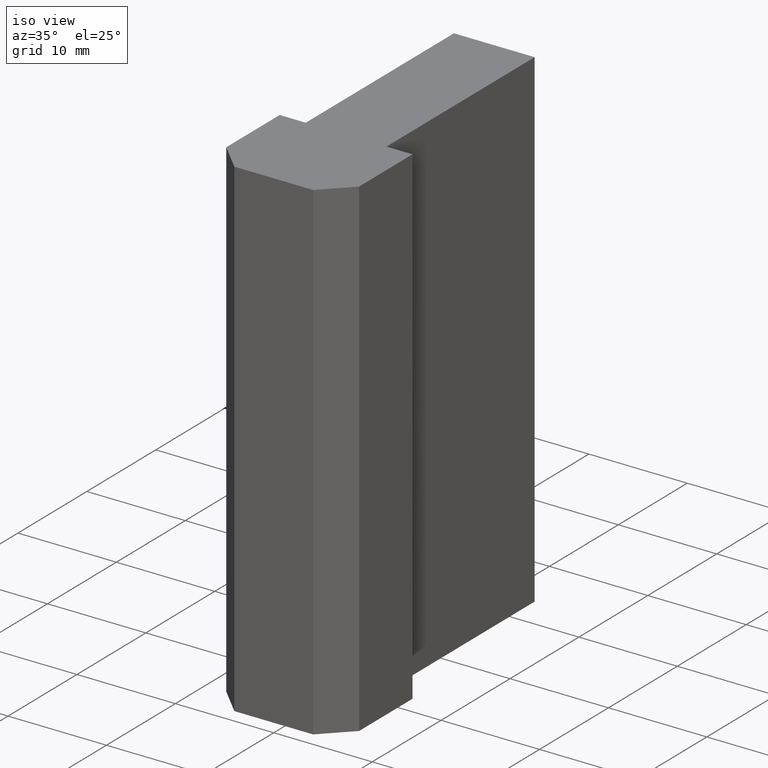
[diagram: clean part render]
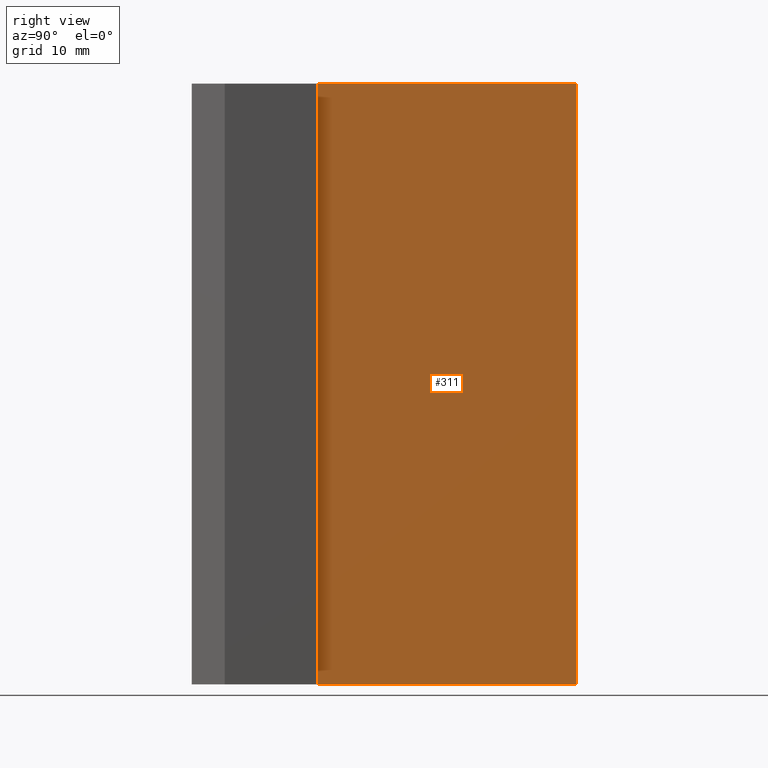
[diagram: tour spotlight — one face highlighted and labeled with its STEP entity id]
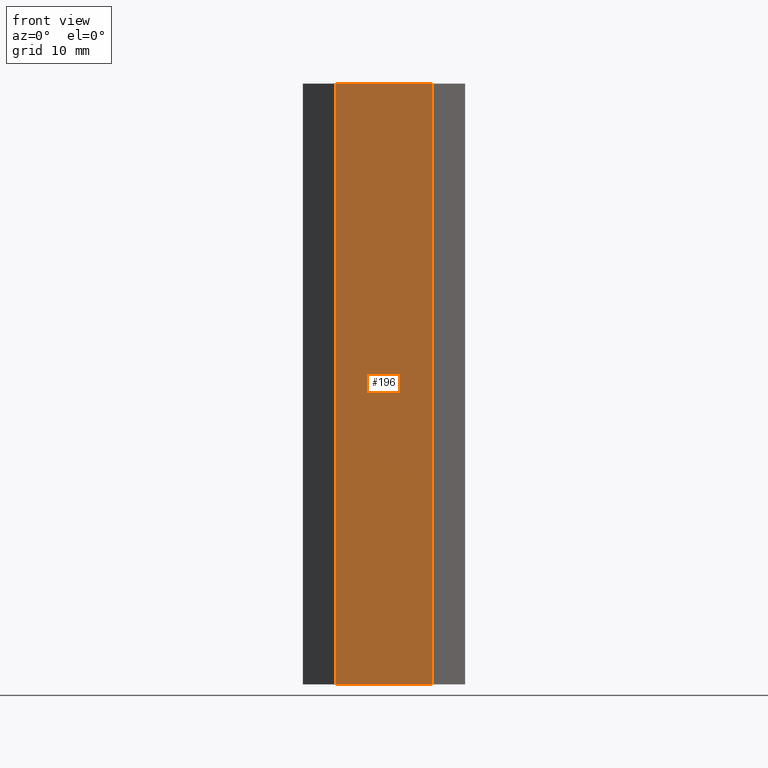
[diagram: tour spotlight — one face highlighted and labeled with its STEP entity id]
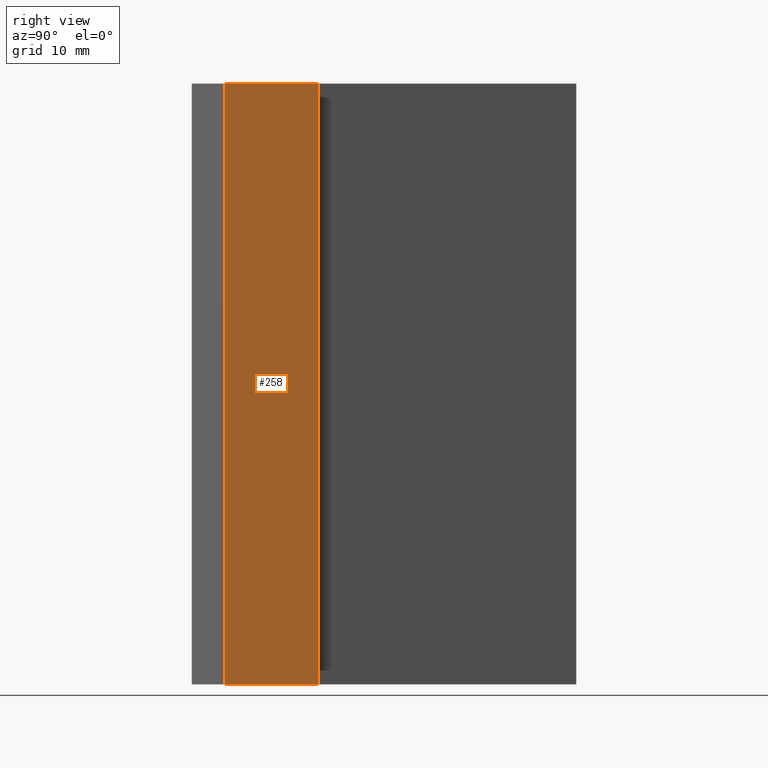
[diagram: tour spotlight — one face highlighted and labeled with its STEP entity id]
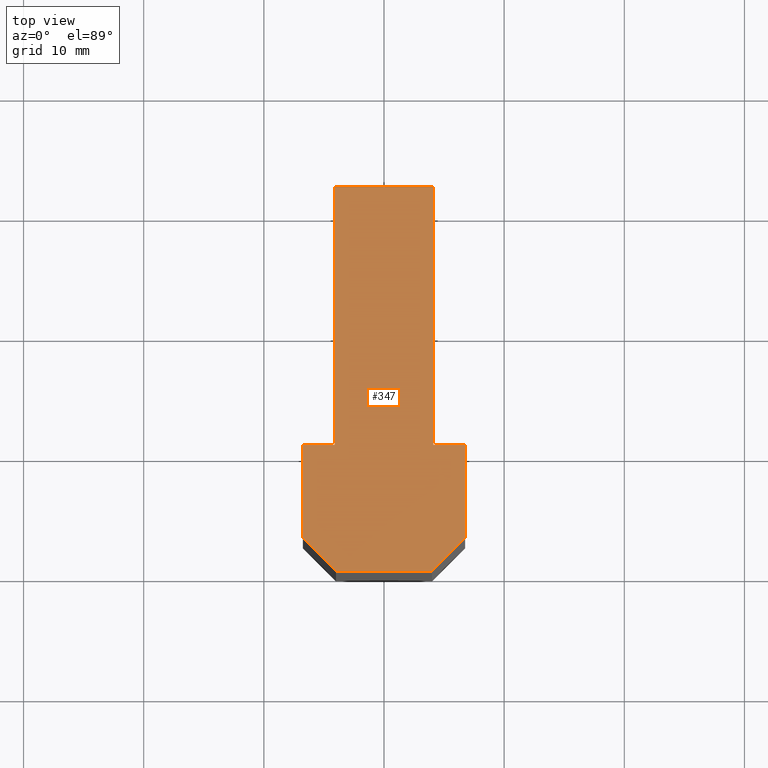
[diagram: tour spotlight — one face highlighted and labeled with its STEP entity id]
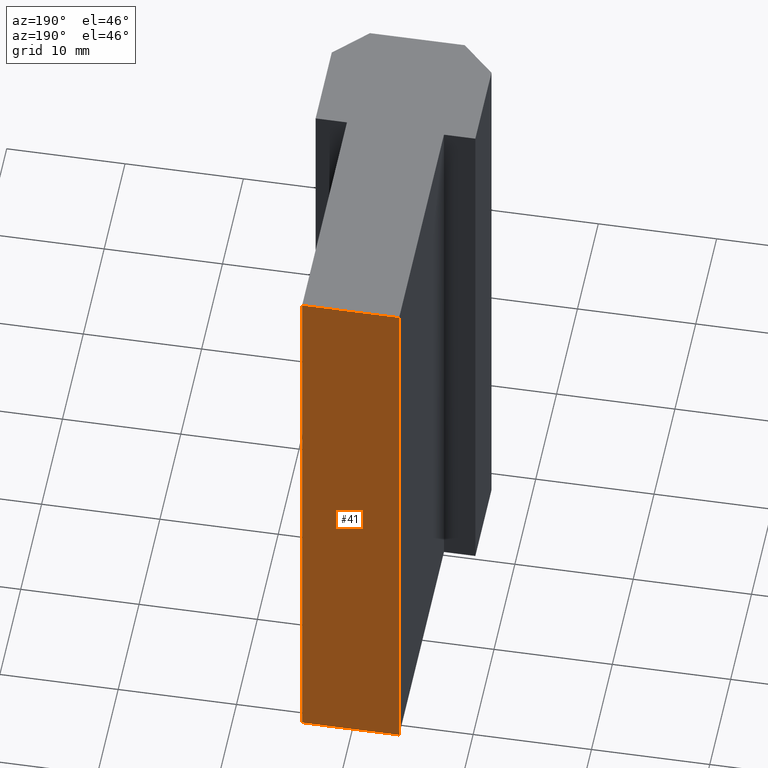
[diagram: tour spotlight — one face highlighted and labeled with its STEP entity id]
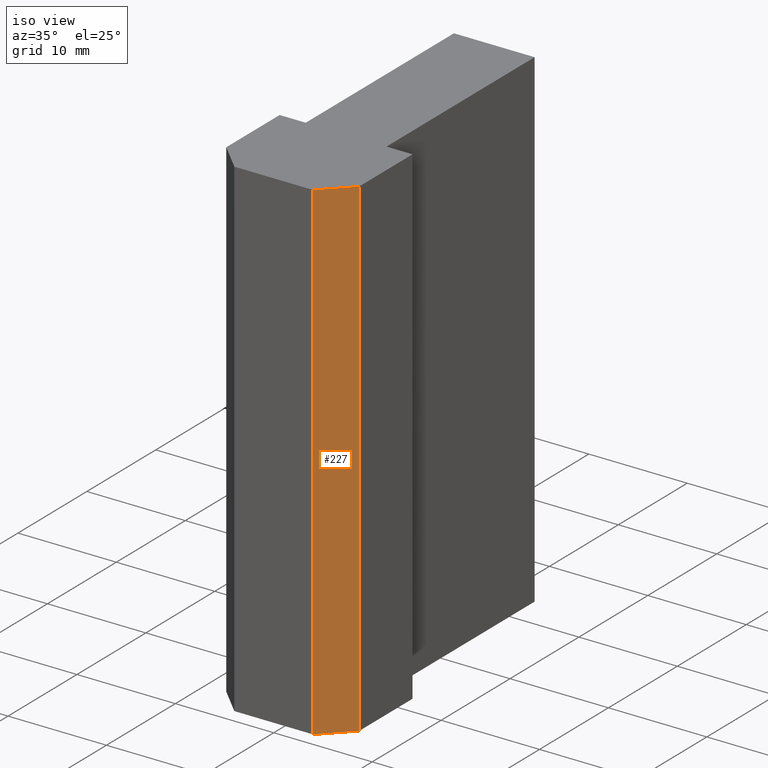
[diagram: tour spotlight — one face highlighted and labeled with its STEP entity id]
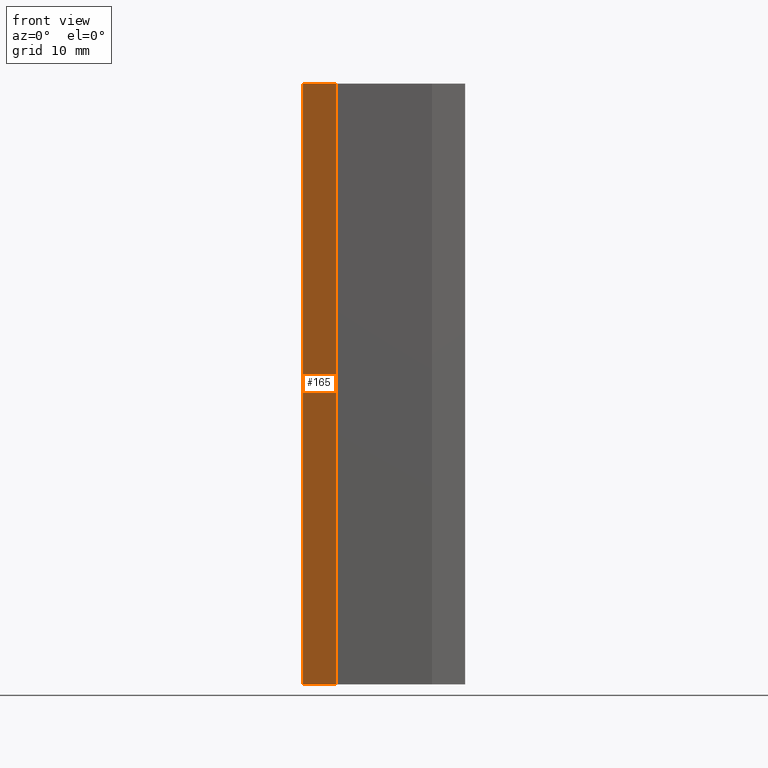
[diagram: tour spotlight — one face highlighted and labeled with its STEP entity id]
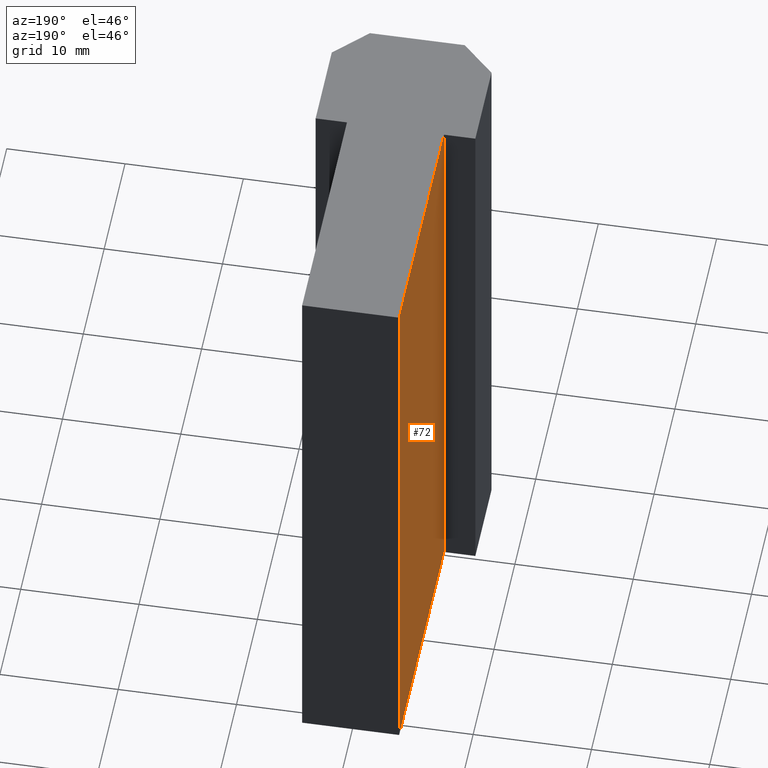
[diagram: tour spotlight — one face highlighted and labeled with its STEP entity id]
A machine part: a face-by-face anatomy tour. The part has 12 B-rep faces; the first image is the clean iso view, then the 8 largest visible faces are spotlighted one at a time (largest first), each with its STEP entity span.

Face 1 — right view, entity #311. In plain terms, the highlighted planar face has unit normal (1, 0, 0).
Definition (entity closure, byte-faithful):
#7=CARTESIAN_POINT('',(4.099999999983766,31.999999999872216,0.0));
#8=VERTEX_POINT('',#7);
#25=CARTESIAN_POINT('',(4.099999999983766,31.999999999872216,50.0));
#26=VERTEX_POINT('',#25);
#33=CARTESIAN_POINT('',(4.099999999983766,31.999999999872216,0.0));
#34=DIRECTION('',(0.0,0.0,1.0));
#35=VECTOR('',#34,50.0);
#36=LINE('',#33,#35);
#37=EDGE_CURVE('',#8,#26,#36,.T.);
#264=CARTESIAN_POINT('',(4.099999999983538,10.499999999958163,0.0));
#265=VERTEX_POINT('',#264);
#272=CARTESIAN_POINT('',(4.099999999983538,10.499999999958163,50.0));
#273=VERTEX_POINT('',#272);
#274=CARTESIAN_POINT('',(4.099999999983538,10.499999999958163,0.0));
#275=DIRECTION('',(0.0,0.0,1.0));
#276=VECTOR('',#275,50.0);
#277=LINE('',#274,#276);
#278=EDGE_CURVE('',#265,#273,#277,.T.);
#290=CARTESIAN_POINT('',(4.099999999983538,10.499999999958163,0.0));
#291=DIRECTION('',(1.0,0.0,0.0));
#292=DIRECTION('',(0.0,1.0,0.0));
#293=AXIS2_PLACEMENT_3D('',#290,#291,#292);
#294=PLANE('',#293);
#295=CARTESIAN_POINT('',(4.099999999983538,10.499999999958199,0.0));
#296=DIRECTION('',(0.0,1.0,0.0));
#297=VECTOR('',#296,21.499999999914017);
#298=LINE('',#295,#297);
#299=EDGE_CURVE('',#265,#8,#298,.T.);
#300=ORIENTED_EDGE('',*,*,#299,.T.);
#301=ORIENTED_EDGE('',*,*,#37,.T.);
#302=CARTESIAN_POINT('',(4.099999999983538,10.499999999958199,50.0));
#303=DIRECTION('',(0.0,1.0,0.0));
#304=VECTOR('',#303,21.499999999914017);
#305=LINE('',#302,#304);
#306=EDGE_CURVE('',#273,#26,#305,.T.);
#307=ORIENTED_EDGE('',*,*,#306,.F.);
#308=ORIENTED_EDGE('',*,*,#278,.F.);
#309=EDGE_LOOP('',(#300,#301,#307,#308));
#310=FACE_OUTER_BOUND('',#309,.T.);
#311=ADVANCED_FACE('',(#310),#294,.T.);

Face 2 — front view, entity #196. In plain terms, the highlighted planar face has unit normal (0, -1, 0).
Definition (entity closure, byte-faithful):
#140=CARTESIAN_POINT('',(-3.999999999983857,0.0,0.0));
#141=VERTEX_POINT('',#140);
#148=CARTESIAN_POINT('',(-3.999999999983857,0.0,50.0));
#149=VERTEX_POINT('',#148);
#150=CARTESIAN_POINT('',(-3.999999999983857,0.0,0.0));
#151=DIRECTION('',(0.0,0.0,1.0));
#152=VECTOR('',#151,50.0);
#153=LINE('',#150,#152);
#154=EDGE_CURVE('',#141,#149,#153,.T.);
#166=CARTESIAN_POINT('',(-3.999999999983857,0.0,0.0));
#167=DIRECTION('',(0.0,-1.0,0.0));
#168=DIRECTION('',(1.0,0.0,0.0));
#169=AXIS2_PLACEMENT_3D('',#166,#167,#168);
#170=PLANE('',#169);
#171=CARTESIAN_POINT('',(3.999999999983857,0.0,0.0));
#172=VERTEX_POINT('',#171);
#173=CARTESIAN_POINT('',(-3.999999999983911,0.0,0.0));
#174=DIRECTION('',(1.0,0.0,0.0));
#175=VECTOR('',#174,7.999999999967995);
#176=LINE('',#173,#175);
#177=EDGE_CURVE('',#141,#172,#176,.T.);
#178=ORIENTED_EDGE('',*,*,#177,.T.);
#179=CARTESIAN_POINT('',(3.999999999983857,0.0,50.0));
#180=VERTEX_POINT('',#179);
#181=CARTESIAN_POINT('',(3.999999999983857,0.0,0.0));
#182=DIRECTION('',(0.0,0.0,1.0));
#183=VECTOR('',#182,50.0);
#184=LINE('',#181,#183);
#185=EDGE_CURVE('',#172,#180,#184,.T.);
#186=ORIENTED_EDGE('',*,*,#185,.T.);
#187=CARTESIAN_POINT('',(-3.999999999983911,0.0,50.0));
#188=DIRECTION('',(1.0,0.0,0.0));
#189=VECTOR('',#188,7.999999999967995);
#190=LINE('',#187,#189);
#191=EDGE_CURVE('',#149,#180,#190,.T.);
#192=ORIENTED_EDGE('',*,*,#191,.F.);
#193=ORIENTED_EDGE('',*,*,#154,.F.);
#194=EDGE_LOOP('',(#178,#186,#192,#193));
#195=FACE_OUTER_BOUND('',#194,.T.);
#196=ADVANCED_FACE('',(#195),#170,.T.);

Face 3 — right view, entity #258. In plain terms, the highlighted planar face has unit normal (1, 0, 0).
Definition (entity closure, byte-faithful):
#202=CARTESIAN_POINT('',(6.749999999972943,2.749999999989086,0.0));
#203=VERTEX_POINT('',#202);
#210=CARTESIAN_POINT('',(6.749999999972943,2.749999999989086,50.0));
#211=VERTEX_POINT('',#210);
#212=CARTESIAN_POINT('',(6.749999999972943,2.749999999989086,0.0));
#213=DIRECTION('',(0.0,0.0,1.0));
#214=VECTOR('',#213,50.0);
#215=LINE('',#212,#214);
#216=EDGE_CURVE('',#203,#211,#215,.T.);
#228=CARTESIAN_POINT('',(6.749999999972943,2.749999999989086,0.0));
#229=DIRECTION('',(1.0,0.0,0.0));
#230=DIRECTION('',(0.0,1.0,0.0));
#231=AXIS2_PLACEMENT_3D('',#228,#229,#230);
#232=PLANE('',#231);
#233=CARTESIAN_POINT('',(6.749999999972943,10.499999999958163,0.0));
#234=VERTEX_POINT('',#233);
#235=CARTESIAN_POINT('',(6.749999999972943,2.749999999989147,0.0));
#236=DIRECTION('',(0.0,1.0,0.0));
#237=VECTOR('',#236,7.749999999969016);
#238=LINE('',#235,#237);
#239=EDGE_CURVE('',#203,#234,#238,.T.);
#240=ORIENTED_EDGE('',*,*,#239,.T.);
#241=CARTESIAN_POINT('',(6.749999999972943,10.499999999958163,50.0));
#242=VERTEX_POINT('',#241);
#243=CARTESIAN_POINT('',(6.749999999972943,10.499999999958163,0.0));
#244=DIRECTION('',(0.0,0.0,1.0));
#245=VECTOR('',#244,50.0);
#246=LINE('',#243,#245);
#247=EDGE_CURVE('',#234,#242,#246,.T.);
#248=ORIENTED_EDGE('',*,*,#247,.T.);
#249=CARTESIAN_POINT('',(6.749999999972943,2.749999999989147,50.0));
#250=DIRECTION('',(0.0,1.0,0.0));
#251=VECTOR('',#250,7.749999999969016);
#252=LINE('',#249,#251);
#253=EDGE_CURVE('',#211,#242,#252,.T.);
#254=ORIENTED_EDGE('',*,*,#253,.F.);
#255=ORIENTED_EDGE('',*,*,#216,.F.);
#256=EDGE_LOOP('',(#240,#248,#254,#255));
#257=FACE_OUTER_BOUND('',#256,.T.);
#258=ADVANCED_FACE('',(#257),#232,.T.);

Face 4 — top view, entity #347. In plain terms, the highlighted planar face has unit normal (0, 0, 1).
Definition (entity closure, byte-faithful):
#17=CARTESIAN_POINT('',(-4.099999999983538,31.999999999872216,50.0));
#18=VERTEX_POINT('',#17);
#25=CARTESIAN_POINT('',(4.099999999983766,31.999999999872216,50.0));
#26=VERTEX_POINT('',#25);
#27=CARTESIAN_POINT('',(4.099999999983671,31.999999999872216,50.0));
#28=DIRECTION('',(-1.0,0.0,0.0));
#29=VECTOR('',#28,8.199999999967210);
#30=LINE('',#27,#29);
#31=EDGE_CURVE('',#26,#18,#30,.T.);
#55=CARTESIAN_POINT('',(-4.099999999983538,10.499999999958163,50.0));
#56=VERTEX_POINT('',#55);
#63=CARTESIAN_POINT('',(-4.099999999983538,31.999999999872145,50.0));
#64=DIRECTION('',(0.0,-1.0,0.0));
#65=VECTOR('',#64,21.499999999913982);
#66=LINE('',#63,#65);
#67=EDGE_CURVE('',#18,#56,#66,.T.);
#86=CARTESIAN_POINT('',(-6.749999999972943,10.499999999958163,50.0));
#87=VERTEX_POINT('',#86);
#94=CARTESIAN_POINT('',(-4.099999999983526,10.499999999958163,50.0));
#95=DIRECTION('',(-1.0,0.0,0.0));
#96=VECTOR('',#95,2.649999999989417);
#97=LINE('',#94,#96);
#98=EDGE_CURVE('',#56,#87,#97,.T.);
#117=CARTESIAN_POINT('',(-6.749999999972943,2.749999999989086,50.0));
#118=VERTEX_POINT('',#117);
#125=CARTESIAN_POINT('',(-6.749999999972943,10.499999999958085,50.0));
#126=DIRECTION('',(0.0,-1.0,0.0));
#127=VECTOR('',#126,7.749999999968999);
#128=LINE('',#125,#127);
#129=EDGE_CURVE('',#87,#118,#128,.T.);
#148=CARTESIAN_POINT('',(-3.999999999983857,0.0,50.0));
#149=VERTEX_POINT('',#148);
#156=CARTESIAN_POINT('',(-6.749999999972854,2.749999999988997,50.0));
#157=DIRECTION('',(0.707106781186548,-0.707106781186547,0.0));
#158=VECTOR('',#157,3.889087296510451);
#159=LINE('',#156,#158);
#160=EDGE_CURVE('',#118,#149,#159,.T.);
#179=CARTESIAN_POINT('',(3.999999999983857,0.0,50.0));
#180=VERTEX_POINT('',#179);
#187=CARTESIAN_POINT('',(-3.999999999983911,0.0,50.0));
#188=DIRECTION('',(1.0,0.0,0.0));
#189=VECTOR('',#188,7.999999999967995);
#190=LINE('',#187,#189);
#191=EDGE_CURVE('',#149,#180,#190,.T.);
#210=CARTESIAN_POINT('',(6.749999999972943,2.749999999989086,50.0));
#211=VERTEX_POINT('',#210);
#218=CARTESIAN_POINT('',(3.999999999983928,8.926193E-014,50.0));
#219=DIRECTION('',(0.707106781186550,0.707106781186545,0.0));
#220=VECTOR('',#219,3.889087296510463);
#221=LINE('',#218,#220);
#222=EDGE_CURVE('',#180,#211,#221,.T.);
#241=CARTESIAN_POINT('',(6.749999999972943,10.499999999958163,50.0));
#242=VERTEX_POINT('',#241);
#249=CARTESIAN_POINT('',(6.749999999972943,2.749999999989147,50.0));
#250=DIRECTION('',(0.0,1.0,0.0));
#251=VECTOR('',#250,7.749999999969016);
#252=LINE('',#249,#251);
#253=EDGE_CURVE('',#211,#242,#252,.T.);
#272=CARTESIAN_POINT('',(4.099999999983538,10.499999999958163,50.0));
#273=VERTEX_POINT('',#272);
#280=CARTESIAN_POINT('',(6.749999999972955,10.499999999958163,50.0));
#281=DIRECTION('',(-1.0,0.0,0.0));
#282=VECTOR('',#281,2.649999999989417);
#283=LINE('',#280,#282);
#284=EDGE_CURVE('',#242,#273,#283,.T.);
#302=CARTESIAN_POINT('',(4.099999999983538,10.499999999958199,50.0));
#303=DIRECTION('',(0.0,1.0,0.0));
#304=VECTOR('',#303,21.499999999914017);
#305=LINE('',#302,#304);
#306=EDGE_CURVE('',#273,#26,#305,.T.);
#330=CARTESIAN_POINT('',(-8.100004733506239,-3.200004733505011,50.0));
#331=DIRECTION('',(0.0,0.0,1.0));
#332=DIRECTION('',(1.0,0.0,0.0));
#333=AXIS2_PLACEMENT_3D('',#330,#331,#332);
#334=PLANE('',#333);
#335=ORIENTED_EDGE('',*,*,#31,.T.);
#336=ORIENTED_EDGE('',*,*,#67,.T.);
#337=ORIENTED_EDGE('',*,*,#98,.T.);
#338=ORIENTED_EDGE('',*,*,#129,.T.);
#339=ORIENTED_EDGE('',*,*,#160,.T.);
#340=ORIENTED_EDGE('',*,*,#191,.T.);
#341=ORIENTED_EDGE('',*,*,#222,.T.);
#342=ORIENTED_EDGE('',*,*,#253,.T.);
#343=ORIENTED_EDGE('',*,*,#284,.T.);
#344=ORIENTED_EDGE('',*,*,#306,.T.);
#345=EDGE_LOOP('',(#335,#336,#337,#338,#339,#340,#341,#342,#343,#344));
#346=FACE_OUTER_BOUND('',#345,.T.);
#347=ADVANCED_FACE('',(#346),#334,.T.);

Face 5 — auxiliary view, entity #41. In plain terms, the highlighted planar face has unit normal (0, 1, 0).
Definition (entity closure, byte-faithful):
#2=CARTESIAN_POINT('',(4.099999999983766,31.999999999872216,0.0));
#3=DIRECTION('',(0.0,1.0,0.0));
#4=DIRECTION('',(-1.0,0.0,0.0));
#5=AXIS2_PLACEMENT_3D('',#2,#3,#4);
#6=PLANE('',#5);
#7=CARTESIAN_POINT('',(4.099999999983766,31.999999999872216,0.0));
#8=VERTEX_POINT('',#7);
#9=CARTESIAN_POINT('',(-4.099999999983538,31.999999999872216,0.0));
#10=VERTEX_POINT('',#9);
#11=CARTESIAN_POINT('',(4.099999999983671,31.999999999872216,0.0));
#12=DIRECTION('',(-1.0,0.0,0.0));
#13=VECTOR('',#12,8.199999999967210);
#14=LINE('',#11,#13);
#15=EDGE_CURVE('',#8,#10,#14,.T.);
#16=ORIENTED_EDGE('',*,*,#15,.T.);
#17=CARTESIAN_POINT('',(-4.099999999983538,31.999999999872216,50.0));
#18=VERTEX_POINT('',#17);
#19=CARTESIAN_POINT('',(-4.099999999983538,31.999999999872216,0.0));
#20=DIRECTION('',(0.0,0.0,1.0));
#21=VECTOR('',#20,50.0);
#22=LINE('',#19,#21);
#23=EDGE_CURVE('',#10,#18,#22,.T.);
#24=ORIENTED_EDGE('',*,*,#23,.T.);
#25=CARTESIAN_POINT('',(4.099999999983766,31.999999999872216,50.0));
#26=VERTEX_POINT('',#25);
#27=CARTESIAN_POINT('',(4.099999999983671,31.999999999872216,50.0));
#28=DIRECTION('',(-1.0,0.0,0.0));
#29=VECTOR('',#28,8.199999999967210);
#30=LINE('',#27,#29);
#31=EDGE_CURVE('',#26,#18,#30,.T.);
#32=ORIENTED_EDGE('',*,*,#31,.F.);
#33=CARTESIAN_POINT('',(4.099999999983766,31.999999999872216,0.0));
#34=DIRECTION('',(0.0,0.0,1.0));
#35=VECTOR('',#34,50.0);
#36=LINE('',#33,#35);
#37=EDGE_CURVE('',#8,#26,#36,.T.);
#38=ORIENTED_EDGE('',*,*,#37,.F.);
#39=EDGE_LOOP('',(#16,#24,#32,#38));
#40=FACE_OUTER_BOUND('',#39,.T.);
#41=ADVANCED_FACE('',(#40),#6,.T.);

Face 6 — iso view, entity #227. In plain terms, the highlighted planar face has unit normal (0.7071, -0.7071, 0).
Definition (entity closure, byte-faithful):
#171=CARTESIAN_POINT('',(3.999999999983857,0.0,0.0));
#172=VERTEX_POINT('',#171);
#179=CARTESIAN_POINT('',(3.999999999983857,0.0,50.0));
#180=VERTEX_POINT('',#179);
#181=CARTESIAN_POINT('',(3.999999999983857,0.0,0.0));
#182=DIRECTION('',(0.0,0.0,1.0));
#183=VECTOR('',#182,50.0);
#184=LINE('',#181,#183);
#185=EDGE_CURVE('',#172,#180,#184,.T.);
#197=CARTESIAN_POINT('',(3.999999999983857,0.0,0.0));
#198=DIRECTION('',(0.707106781186548,-0.707106781186548,0.0));
#199=DIRECTION('',(0.707106781186548,0.707106781186548,0.0));
#200=AXIS2_PLACEMENT_3D('',#197,#198,#199);
#201=PLANE('',#200);
#202=CARTESIAN_POINT('',(6.749999999972943,2.749999999989086,0.0));
#203=VERTEX_POINT('',#202);
#204=CARTESIAN_POINT('',(3.999999999983928,8.926193E-014,0.0));
#205=DIRECTION('',(0.707106781186550,0.707106781186545,0.0));
#206=VECTOR('',#205,3.889087296510463);
#207=LINE('',#204,#206);
#208=EDGE_CURVE('',#172,#203,#207,.T.);
#209=ORIENTED_EDGE('',*,*,#208,.T.);
#210=CARTESIAN_POINT('',(6.749999999972943,2.749999999989086,50.0));
#211=VERTEX_POINT('',#210);
#212=CARTESIAN_POINT('',(6.749999999972943,2.749999999989086,0.0));
#213=DIRECTION('',(0.0,0.0,1.0));
#214=VECTOR('',#213,50.0);
#215=LINE('',#212,#214);
#216=EDGE_CURVE('',#203,#211,#215,.T.);
#217=ORIENTED_EDGE('',*,*,#216,.T.);
#218=CARTESIAN_POINT('',(3.999999999983928,8.926193E-014,50.0));
#219=DIRECTION('',(0.707106781186550,0.707106781186545,0.0));
#220=VECTOR('',#219,3.889087296510463);
#221=LINE('',#218,#220);
#222=EDGE_CURVE('',#180,#211,#221,.T.);
#223=ORIENTED_EDGE('',*,*,#222,.F.);
#224=ORIENTED_EDGE('',*,*,#185,.F.);
#225=EDGE_LOOP('',(#209,#217,#223,#224));
#226=FACE_OUTER_BOUND('',#225,.T.);
#227=ADVANCED_FACE('',(#226),#201,.T.);

Face 7 — front view, entity #165. In plain terms, the highlighted planar face has unit normal (-0.7071, -0.7071, 0).
Definition (entity closure, byte-faithful):
#109=CARTESIAN_POINT('',(-6.749999999972943,2.749999999989086,0.0));
#110=VERTEX_POINT('',#109);
#117=CARTESIAN_POINT('',(-6.749999999972943,2.749999999989086,50.0));
#118=VERTEX_POINT('',#117);
#119=CARTESIAN_POINT('',(-6.749999999972943,2.749999999989086,0.0));
#120=DIRECTION('',(0.0,0.0,1.0));
#121=VECTOR('',#120,50.0);
#122=LINE('',#119,#121);
#123=EDGE_CURVE('',#110,#118,#122,.T.);
#135=CARTESIAN_POINT('',(-6.749999999972943,2.749999999989086,0.0));
#136=DIRECTION('',(-0.707106781186548,-0.707106781186548,0.0));
#137=DIRECTION('',(0.707106781186548,-0.707106781186548,0.0));
#138=AXIS2_PLACEMENT_3D('',#135,#136,#137);
#139=PLANE('',#138);
#140=CARTESIAN_POINT('',(-3.999999999983857,0.0,0.0));
#141=VERTEX_POINT('',#140);
#142=CARTESIAN_POINT('',(-6.749999999972854,2.749999999988997,0.0));
#143=DIRECTION('',(0.707106781186548,-0.707106781186547,0.0));
#144=VECTOR('',#143,3.889087296510451);
#145=LINE('',#142,#144);
#146=EDGE_CURVE('',#110,#141,#145,.T.);
#147=ORIENTED_EDGE('',*,*,#146,.T.);
#148=CARTESIAN_POINT('',(-3.999999999983857,0.0,50.0));
#149=VERTEX_POINT('',#148);
#150=CARTESIAN_POINT('',(-3.999999999983857,0.0,0.0));
#151=DIRECTION('',(0.0,0.0,1.0));
#152=VECTOR('',#151,50.0);
#153=LINE('',#150,#152);
#154=EDGE_CURVE('',#141,#149,#153,.T.);
#155=ORIENTED_EDGE('',*,*,#154,.T.);
#156=CARTESIAN_POINT('',(-6.749999999972854,2.749999999988997,50.0));
#157=DIRECTION('',(0.707106781186548,-0.707106781186547,0.0));
#158=VECTOR('',#157,3.889087296510451);
#159=LINE('',#156,#158);
#160=EDGE_CURVE('',#118,#149,#159,.T.);
#161=ORIENTED_EDGE('',*,*,#160,.F.);
#162=ORIENTED_EDGE('',*,*,#123,.F.);
#163=EDGE_LOOP('',(#147,#155,#161,#162));
#164=FACE_OUTER_BOUND('',#163,.T.);
#165=ADVANCED_FACE('',(#164),#139,.T.);

Face 8 — auxiliary view, entity #72. In plain terms, the highlighted planar face has unit normal (-1, 0, 0).
Definition (entity closure, byte-faithful):
#9=CARTESIAN_POINT('',(-4.099999999983538,31.999999999872216,0.0));
#10=VERTEX_POINT('',#9);
#17=CARTESIAN_POINT('',(-4.099999999983538,31.999999999872216,50.0));
#18=VERTEX_POINT('',#17);
#19=CARTESIAN_POINT('',(-4.099999999983538,31.999999999872216,0.0));
#20=DIRECTION('',(0.0,0.0,1.0));
#21=VECTOR('',#20,50.0);
#22=LINE('',#19,#21);
#23=EDGE_CURVE('',#10,#18,#22,.T.);
#42=CARTESIAN_POINT('',(-4.099999999983538,31.999999999872216,0.0));
#43=DIRECTION('',(-1.0,0.0,0.0));
#44=DIRECTION('',(0.0,-1.0,0.0));
#45=AXIS2_PLACEMENT_3D('',#42,#43,#44);
#46=PLANE('',#45);
#47=CARTESIAN_POINT('',(-4.099999999983538,10.499999999958163,0.0));
#48=VERTEX_POINT('',#47);
#49=CARTESIAN_POINT('',(-4.099999999983538,31.999999999872145,0.0));
#50=DIRECTION('',(0.0,-1.0,0.0));
#51=VECTOR('',#50,21.499999999913982);
#52=LINE('',#49,#51);
#53=EDGE_CURVE('',#10,#48,#52,.T.);
#54=ORIENTED_EDGE('',*,*,#53,.T.);
#55=CARTESIAN_POINT('',(-4.099999999983538,10.499999999958163,50.0));
#56=VERTEX_POINT('',#55);
#57=CARTESIAN_POINT('',(-4.099999999983538,10.499999999958163,0.0));
#58=DIRECTION('',(0.0,0.0,1.0));
#59=VECTOR('',#58,50.0);
#60=LINE('',#57,#59);
#61=EDGE_CURVE('',#48,#56,#60,.T.);
#62=ORIENTED_EDGE('',*,*,#61,.T.);
#63=CARTESIAN_POINT('',(-4.099999999983538,31.999999999872145,50.0));
#64=DIRECTION('',(0.0,-1.0,0.0));
#65=VECTOR('',#64,21.499999999913982);
#66=LINE('',#63,#65);
#67=EDGE_CURVE('',#18,#56,#66,.T.);
#68=ORIENTED_EDGE('',*,*,#67,.F.);
#69=ORIENTED_EDGE('',*,*,#23,.F.);
#70=EDGE_LOOP('',(#54,#62,#68,#69));
#71=FACE_OUTER_BOUND('',#70,.T.);
#72=ADVANCED_FACE('',(#71),#46,.T.);